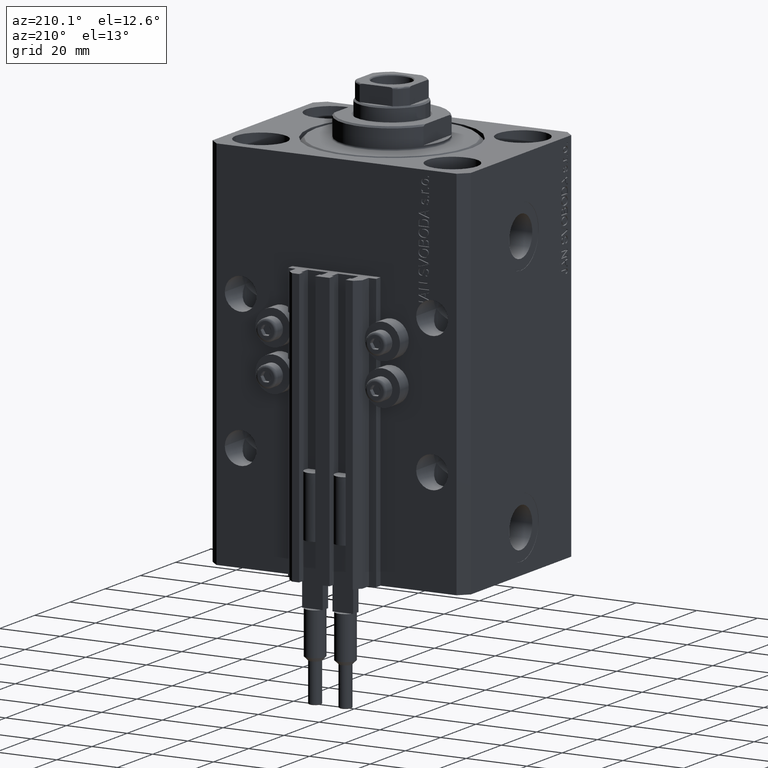
[diagram: clean part render]
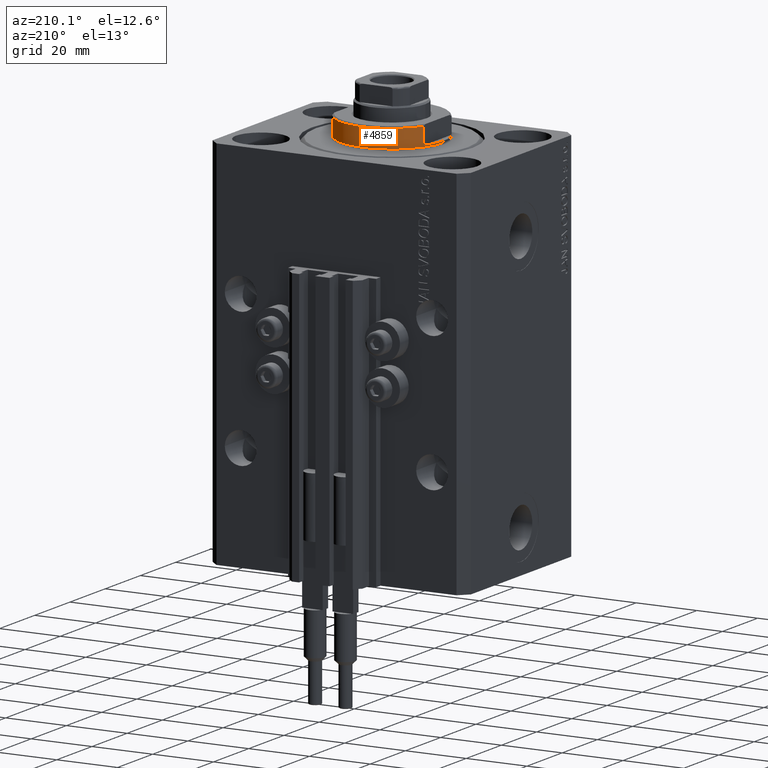
[diagram: same view with one face highlighted and labeled with its STEP entity id]
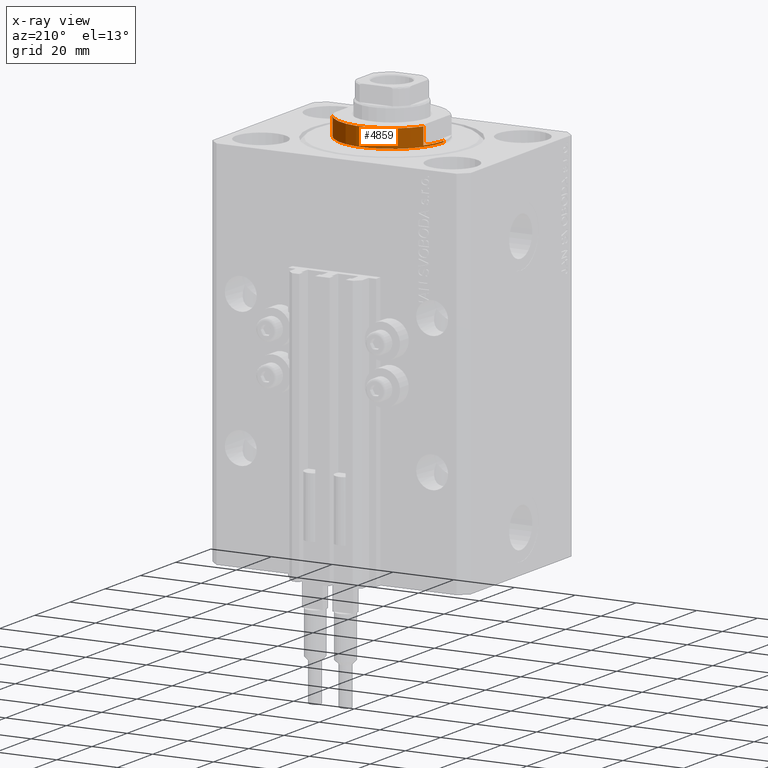
[diagram: x-ray of the same camera — body ghosted, the highlighted face saturated]
A machine part, auxiliary view. The second image highlights one B-rep face of the part: STEP entity #4859.
The next image is the same camera in x-ray: the body ghosted, the highlighted face saturated — about 0% of this face is hidden behind the body in this view.
In plain terms, the highlighted cylindrical surface (partial cylindrical patch) has radius 17 mm, axis along (0, 0, -1).
Its self-contained STEP definition (entity closure, byte-faithful):
#484 = EDGE_LOOP ( 'NONE', ( #28829, #35455, #15158, #14995, #12062, #8837, #25587, #20353 ) ) ;
#514 = DIRECTION ( 'NONE',  ( -1.000000000000000000, 0.000000000000000000, 0.000000000000000000 ) ) ;
#792 = CARTESIAN_POINT ( 'NONE',  ( -14.99999999999999645, 8.000000000000003553, -1.000000000000000000 ) ) ;
#4859 = ADVANCED_FACE ( 'NONE', ( #41047 ), #30285, .T. ) ;
#5513 = VECTOR ( 'NONE', #9002, 1000.000000000000000 ) ;
#7101 = CIRCLE ( 'NONE', #49405, 17.00000000000000000 ) ;
#7700 = CARTESIAN_POINT ( 'NONE',  ( -17.00000000000000000, 2.081899558550500280E-15, -1.000000000000000000 ) ) ;
#8837 = ORIENTED_EDGE ( 'NONE', *, *, #14009, .F. ) ;
#9002 = DIRECTION ( 'NONE',  ( -0.000000000000000000, -0.000000000000000000, 1.000000000000000000 ) ) ;
#9196 = CIRCLE ( 'NONE', #18879, 17.00000000000000000 ) ;
#11056 = CARTESIAN_POINT ( 'NONE',  ( 0.000000000000000000, 0.000000000000000000, -7.000000000000000000 ) ) ;
#11546 = DIRECTION ( 'NONE',  ( 1.000000000000000000, 0.000000000000000000, 0.000000000000000000 ) ) ;
#11717 = AXIS2_PLACEMENT_3D ( 'NONE', #11056, #26294, #11546 ) ;
#12062 = ORIENTED_EDGE ( 'NONE', *, *, #44957, .F. ) ;
#12439 = AXIS2_PLACEMENT_3D ( 'NONE', #42810, #24316, #16309 ) ;
#14009 = EDGE_CURVE ( 'NONE', #23645, #32428, #23998, .T. ) ;
#14459 = CARTESIAN_POINT ( 'NONE',  ( 17.00000000000000000, 0.000000000000000000, -0.4999999999999995559 ) ) ;
#14995 = ORIENTED_EDGE ( 'NONE', *, *, #49046, .F. ) ;
#15052 = DIRECTION ( 'NONE',  ( 0.000000000000000000, 0.000000000000000000, -1.000000000000000000 ) ) ;
#15158 = ORIENTED_EDGE ( 'NONE', *, *, #34330, .T. ) ;
#16309 = DIRECTION ( 'NONE',  ( -1.000000000000000000, 0.000000000000000000, 0.000000000000000000 ) ) ;
#17073 = LINE ( 'NONE', #28075, #22409 ) ;
#17575 = DIRECTION ( 'NONE',  ( -0.000000000000000000, -0.000000000000000000, 1.000000000000000000 ) ) ;
#17706 = DIRECTION ( 'NONE',  ( -0.000000000000000000, -0.000000000000000000, 1.000000000000000000 ) ) ;
#18879 = AXIS2_PLACEMENT_3D ( 'NONE', #43246, #35738, #514 ) ;
#19521 = CARTESIAN_POINT ( 'NONE',  ( 0.000000000000000000, 0.000000000000000000, -1.000000000000000000 ) ) ;
#19981 = DIRECTION ( 'NONE',  ( -0.000000000000000000, -0.000000000000000000, 1.000000000000000000 ) ) ;
#20099 = EDGE_CURVE ( 'NONE', #22778, #31989, #33945, .T. ) ;
#20353 = ORIENTED_EDGE ( 'NONE', *, *, #40730, .T. ) ;
#21196 = CARTESIAN_POINT ( 'NONE',  ( -15.00000000000000000, 8.000000000000001776, -6.500000000000013323 ) ) ;
#21252 = CARTESIAN_POINT ( 'NONE',  ( 0.000000000000000000, 0.000000000000000000, -0.4999999999999995559 ) ) ;
#21453 = CARTESIAN_POINT ( 'NONE',  ( -17.00000000000000000, 2.081899558550500280E-15, -7.000000000000000000 ) ) ;
#22409 = VECTOR ( 'NONE', #17575, 1000.000000000000000 ) ;
#22778 = VERTEX_POINT ( 'NONE', #7700 ) ;
#22926 = CARTESIAN_POINT ( 'NONE',  ( -17.00000000000000000, 2.081899558550500280E-15, -0.4999999999999995559 ) ) ;
#23271 = DIRECTION ( 'NONE',  ( -1.000000000000000000, 0.000000000000000000, 0.000000000000000000 ) ) ;
#23508 = CARTESIAN_POINT ( 'NONE',  ( 15.00000000000000000, 8.000000000000001776, -7.000000000000000000 ) ) ;
#23645 = VERTEX_POINT ( 'NONE', #26950 ) ;
#23978 = LINE ( 'NONE', #38739, #47670 ) ;
#23998 = LINE ( 'NONE', #23508, #5513 ) ;
#24316 = DIRECTION ( 'NONE',  ( 0.000000000000000000, 0.000000000000000000, -1.000000000000000000 ) ) ;
#24952 = VERTEX_POINT ( 'NONE', #14459 ) ;
#25587 = ORIENTED_EDGE ( 'NONE', *, *, #36208, .T. ) ;
#26294 = DIRECTION ( 'NONE',  ( -0.000000000000000000, -0.000000000000000000, 1.000000000000000000 ) ) ;
#26797 = CIRCLE ( 'NONE', #43566, 17.00000000000000000 ) ;
#26950 = CARTESIAN_POINT ( 'NONE',  ( 15.00000000000000000, 8.000000000000001776, -6.500000000000013323 ) ) ;
#28075 = CARTESIAN_POINT ( 'NONE',  ( 17.00000000000000000, 0.000000000000000000, -7.000000000000000000 ) ) ;
#28505 = DIRECTION ( 'NONE',  ( -0.000000000000000000, -0.000000000000000000, -1.000000000000000000 ) ) ;
#28829 = ORIENTED_EDGE ( 'NONE', *, *, #38286, .F. ) ;
#30285 = CYLINDRICAL_SURFACE ( 'NONE', #11717, 17.00000000000000000 ) ;
#31989 = VERTEX_POINT ( 'NONE', #22926 ) ;
#32428 = VERTEX_POINT ( 'NONE', #36586 ) ;
#33945 = LINE ( 'NONE', #21453, #44108 ) ;
#34330 = EDGE_CURVE ( 'NONE', #31989, #24952, #26797, .T. ) ;
#34707 = VERTEX_POINT ( 'NONE', #21196 ) ;
#34816 = CIRCLE ( 'NONE', #12439, 17.00000000000000000 ) ;
#35455 = ORIENTED_EDGE ( 'NONE', *, *, #20099, .T. ) ;
#35738 = DIRECTION ( 'NONE',  ( 0.000000000000000000, 0.000000000000000000, 1.000000000000000000 ) ) ;
#35818 = VERTEX_POINT ( 'NONE', #39645 ) ;
#36208 = EDGE_CURVE ( 'NONE', #23645, #34707, #9196, .T. ) ;
#36586 = CARTESIAN_POINT ( 'NONE',  ( 14.99999999999999645, 8.000000000000003553, -1.000000000000000000 ) ) ;
#38286 = EDGE_CURVE ( 'NONE', #22778, #43024, #34816, .T. ) ;
#38739 = CARTESIAN_POINT ( 'NONE',  ( -15.00000000000000000, 8.000000000000001776, -7.000000000000000000 ) ) ;
#39645 = CARTESIAN_POINT ( 'NONE',  ( 17.00000000000000000, 0.000000000000000000, -1.000000000000000000 ) ) ;
#40730 = EDGE_CURVE ( 'NONE', #34707, #43024, #23978, .T. ) ;
#41047 = FACE_OUTER_BOUND ( 'NONE', #484, .T. ) ;
#42810 = CARTESIAN_POINT ( 'NONE',  ( 0.000000000000000000, 0.000000000000000000, -1.000000000000000000 ) ) ;
#43024 = VERTEX_POINT ( 'NONE', #792 ) ;
#43246 = CARTESIAN_POINT ( 'NONE',  ( 0.000000000000000000, 0.000000000000000000, -6.500000000000013323 ) ) ;
#43566 = AXIS2_PLACEMENT_3D ( 'NONE', #21252, #28505, #44753 ) ;
#44108 = VECTOR ( 'NONE', #17706, 1000.000000000000000 ) ;
#44753 = DIRECTION ( 'NONE',  ( 1.000000000000000000, 0.000000000000000000, 0.000000000000000000 ) ) ;
#44957 = EDGE_CURVE ( 'NONE', #32428, #35818, #7101, .T. ) ;
#47670 = VECTOR ( 'NONE', #19981, 1000.000000000000000 ) ;
#49046 = EDGE_CURVE ( 'NONE', #35818, #24952, #17073, .T. ) ;
#49405 = AXIS2_PLACEMENT_3D ( 'NONE', #19521, #15052, #23271 ) ;